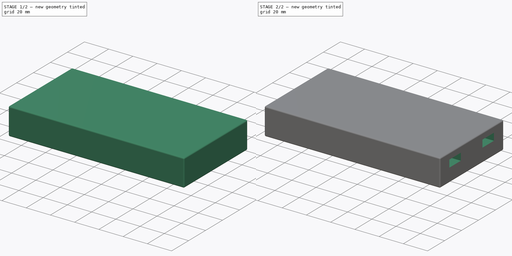
[diagram: build sequence overview — one tinted view per stage of 2, left to right]
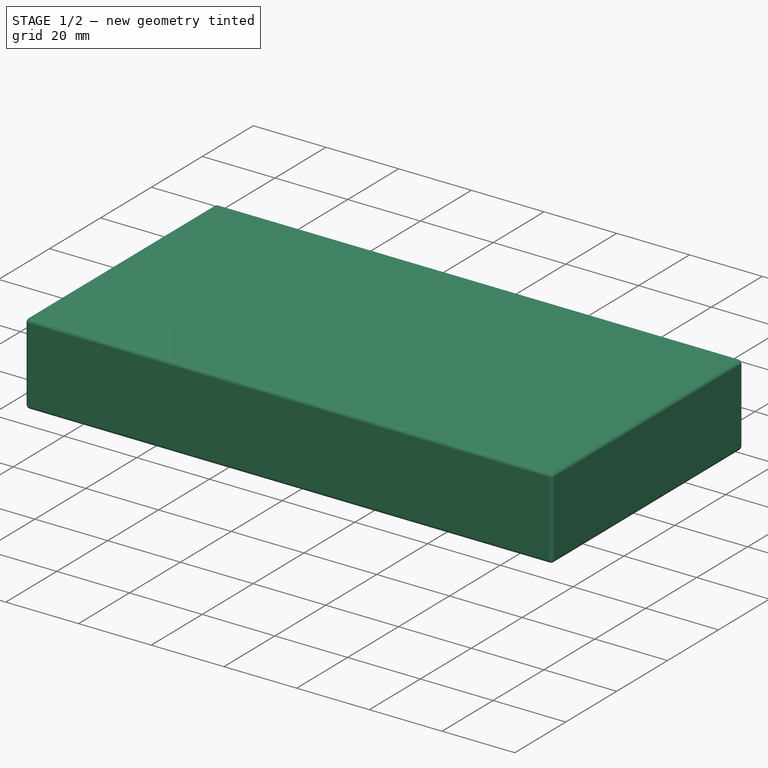
[diagram: stage 1 of 2 — iso view after this stage's code; geometry added in this stage tinted green]
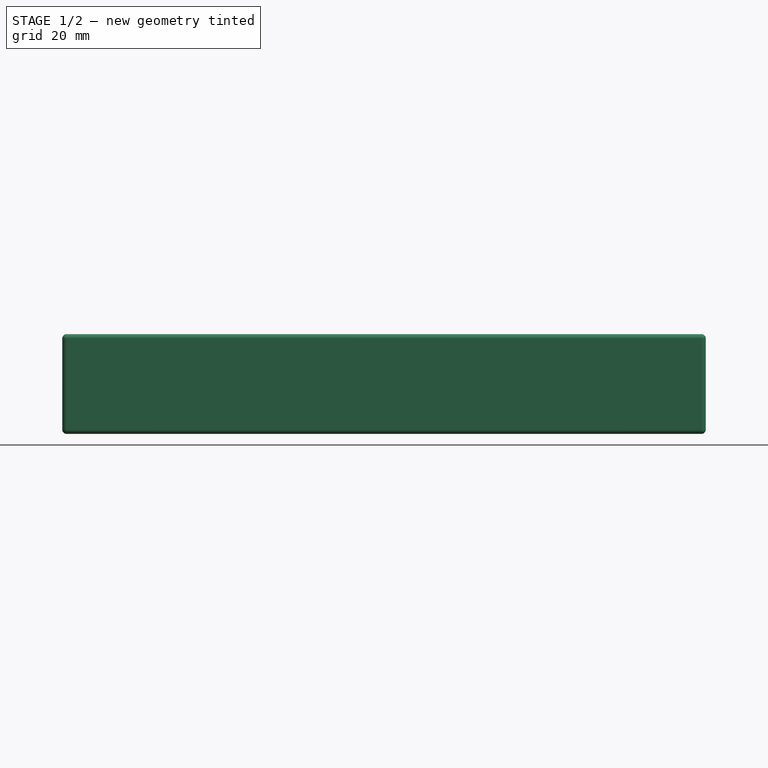
[diagram: stage 1 of 2 — front view after this stage's code; geometry added in this stage tinted green]
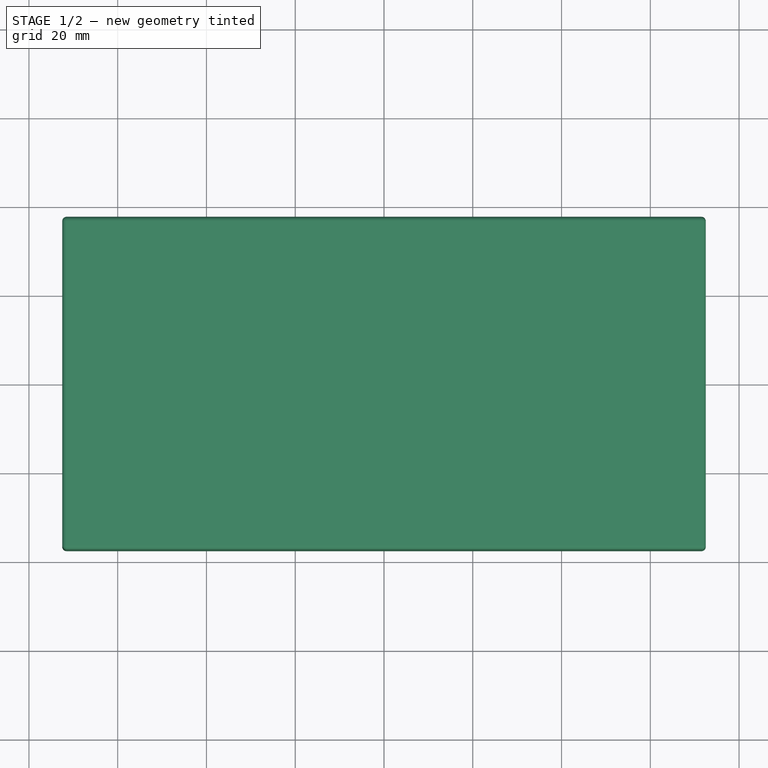
[diagram: stage 1 of 2 — top view after this stage's code; geometry added in this stage tinted green]
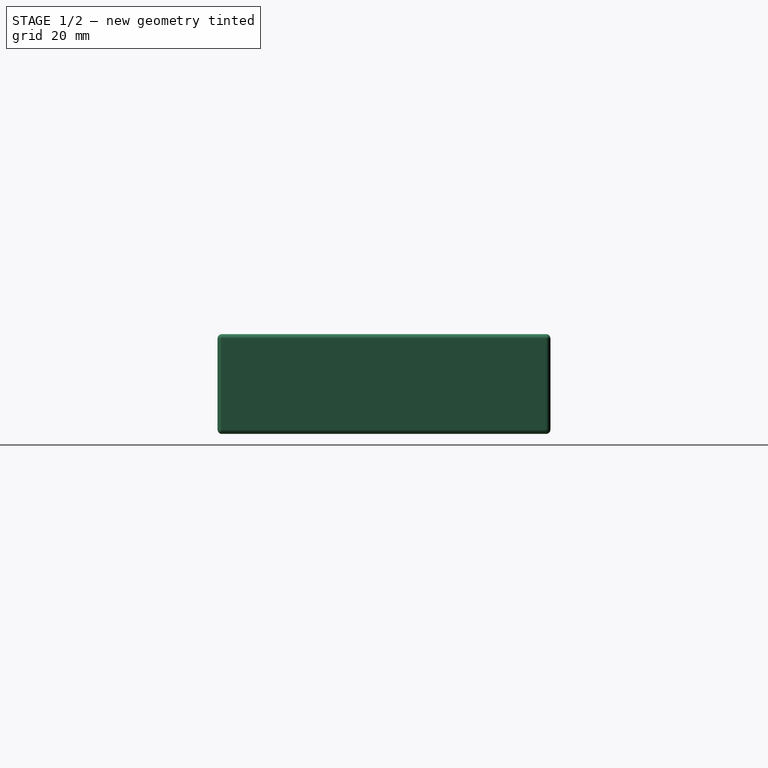
[diagram: stage 1 of 2 — right view after this stage's code; geometry added in this stage tinted green]
FCSTD DOCUMENT  (FreeCAD 0.19R24276 (Git))
Label: PocketJuice Power
License: All rights reserved
LicenseURL: http://en.wikipedia.org/wiki/All_rights_reserved
objects: Sketcher::SketchObject×3, PartDesign::Pocket×2, PartDesign::Pad×1, PartDesign::Fillet×1, PartDesign::Body×1
note: 12 computed .brp shape members not serialized (recipe doc carries the construction recipe); baked Part::Feature solids carry a one-line shape summary decoded from their .brp

FEATURE [Sketcher::SketchObject] Sketch
  FullyConstrained = true
  MapMode = 5
  Support = -> [XY_Plane]
  sketch-geometry (4):
    g0: LineSegment StartX=-72.5 StartY=37.5 StartZ=0 EndX=72.5 EndY=37.5 EndZ=0
    g1: LineSegment StartX=72.5 StartY=37.5 StartZ=0 EndX=72.5 EndY=-37.5 EndZ=0
    g2: LineSegment StartX=72.5 StartY=-37.5 StartZ=0 EndX=-72.5 EndY=-37.5 EndZ=0
    g3: LineSegment StartX=-72.5 StartY=-37.5 StartZ=0 EndX=-72.5 EndY=37.5 EndZ=0
  constraints (12):
    c: Coincident(g0,g1)
    c: Coincident(g1,g2)
    c: Coincident(g2,g3)
    c: Coincident(g3,g0)
    c: Horizontal(g0)
    c: Horizontal(g2)
    c: Vertical(g1)
    c: Vertical(g3)
    c: DistanceY(g1,g1) = 75
    c: DistanceX(g0,g0) = 145
    c: DistanceX(g0,g-1) = 72.5
    c: DistanceY(g-1,g0) = 37.5
FEATURE [PartDesign::Pad] Pad
  Direction = (1,1,1)
  Length = 22.5
  Length2 = 100
  Profile = -> Sketch
  Type = 0
FEATURE [PartDesign::Fillet] Fillet
  Base = -> Pad [Edge10,Edge7,Edge4,Edge12,Edge8,Edge5,Edge2,Edge6,Edge9,Edge3,Edge11,Edge1]
  BaseFeature = -> Pad
  Radius = 1
  SupportTransform = false
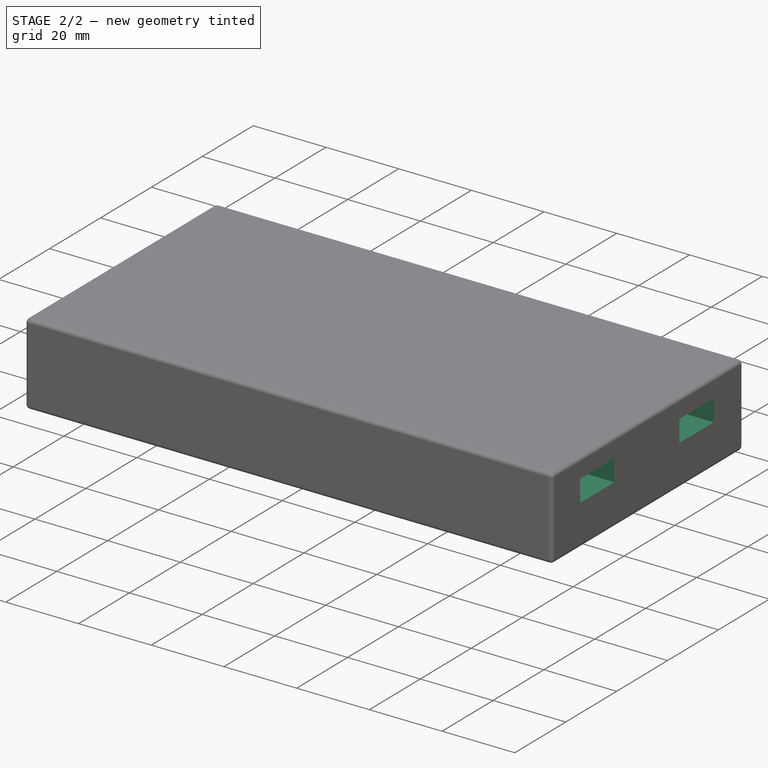
[diagram: stage 2 of 2 — iso view after this stage's code; geometry added in this stage tinted green]
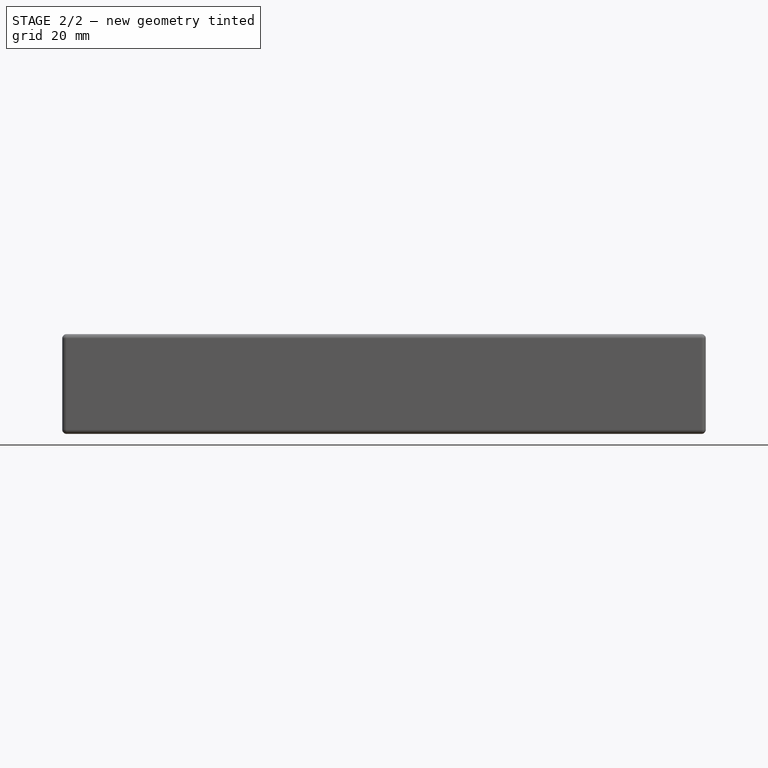
[diagram: stage 2 of 2 — front view after this stage's code; geometry added in this stage tinted green]
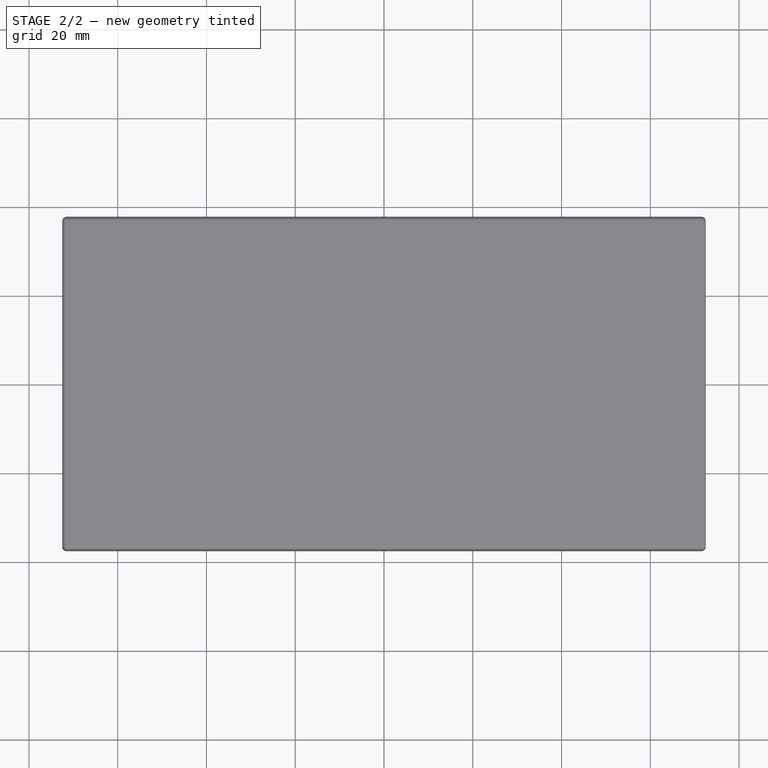
[diagram: stage 2 of 2 — top view after this stage's code; geometry added in this stage tinted green]
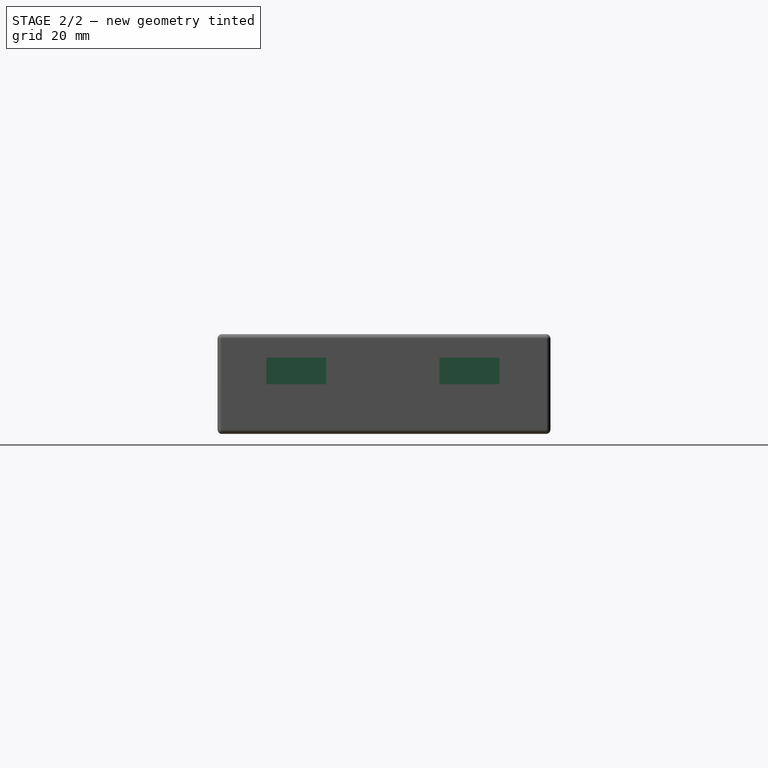
[diagram: stage 2 of 2 — right view after this stage's code; geometry added in this stage tinted green]
FEATURE [Sketcher::SketchObject] Sketch001
  FullyConstrained = false
  MapMode = 5
  Placement = pos=(0,0,0) rot=(1,0,0;3.14159rad)
  Support = -> [Fillet]
  sketch-geometry (20):
    g0: LineSegment StartX=60.5846 StartY=10 StartZ=0 EndX=65.5846 EndY=10 EndZ=0
    g1: LineSegment StartX=65.5846 StartY=10 StartZ=0 EndX=65.5846 EndY=8 EndZ=0
    g2: LineSegment StartX=65.5846 StartY=8 StartZ=0 EndX=60.5846 EndY=8 EndZ=0
    g3: LineSegment StartX=60.5846 StartY=8 StartZ=0 EndX=60.5846 EndY=10 EndZ=0
    g4: LineSegment StartX=60.5846 StartY=4 StartZ=0 EndX=65.5846 EndY=4 EndZ=0
    g5: LineSegment StartX=65.5846 StartY=4 StartZ=0 EndX=65.5846 EndY=2 EndZ=0
    g6: LineSegment StartX=65.5846 StartY=2 StartZ=0 EndX=60.5846 EndY=2 EndZ=0
    g7: LineSegment StartX=60.5846 StartY=2 StartZ=0 EndX=60.5846 EndY=4 EndZ=0
    g8: LineSegment StartX=60.5846 StartY=-2 StartZ=0 EndX=65.5846 EndY=-2 EndZ=0
    g9: LineSegment StartX=65.5846 StartY=-2 StartZ=0 EndX=65.5846 EndY=-4 EndZ=0
    g10: LineSegment StartX=65.5846 StartY=-4 StartZ=0 EndX=60.5846 EndY=-4 EndZ=0
    g11: LineSegment StartX=60.5846 StartY=-4 StartZ=0 EndX=60.5846 EndY=-2 EndZ=0
    g12: LineSegment StartX=60.5846 StartY=-8 StartZ=0 EndX=65.5846 EndY=-8 EndZ=0
    g13: LineSegment StartX=65.5846 StartY=-8 StartZ=0 EndX=65.5846 EndY=-10 EndZ=0
    g14: LineSegment StartX=65.5846 StartY=-10 StartZ=0 EndX=60.5846 EndY=-10 EndZ=0
    g15: LineSegment StartX=60.5846 StartY=-10 StartZ=0 EndX=60.5846 EndY=-8 EndZ=0
    g16: LineSegment StartX=46.5846 StartY=4 StartZ=0 EndX=52.5846 EndY=4 EndZ=0
    g17: LineSegment StartX=52.5846 StartY=4 StartZ=0 EndX=52.5846 EndY=-4 EndZ=0
    g18: LineSegment StartX=52.5846 StartY=-4 StartZ=0 EndX=46.5846 EndY=-4 EndZ=0
    g19: LineSegment StartX=46.5846 StartY=-4 StartZ=0 EndX=46.5846 EndY=4 EndZ=0
  constraints (59):
    c: Coincident(g0,g1)
    c: Coincident(g1,g2)
    c: Coincident(g2,g3)
    c: Coincident(g3,g0)
    c: Horizontal(g0)
    c: Horizontal(g2)
    c: Vertical(g1)
    c: Vertical(g3)
    c: Coincident(g4,g5)
    c: Coincident(g5,g6)
    c: Coincident(g6,g7)
    c: Coincident(g7,g4)
    c: Horizontal(g4)
    c: Horizontal(g6)
    c: Vertical(g5)
    c: Vertical(g7)
    c: Coincident(g8,g9)
    c: Coincident(g9,g10)
    c: Coincident(g10,g11)
    c: Coincident(g11,g8)
    c: Horizontal(g8)
    c: Horizontal(g10)
    c: Vertical(g9)
    c: Vertical(g11)
    c: Coincident(g12,g13)
    c: Coincident(g13,g14)
    c: Coincident(g14,g15)
    c: Coincident(g15,g12)
    c: Horizontal(g12)
    c: Horizontal(g14)
    c: Vertical(g13)
    c: Vertical(g15)
    c: Coincident(g16,g17)
    c: Coincident(g17,g18)
    c: Coincident(g18,g19)
    c: Coincident(g19,g16)
    c: Horizontal(g16)
    c: Horizontal(g18)
    c: Vertical(g17)
    c: Vertical(g19)
    c: DistanceY(g4,g1) = 4
    c: DistanceY(g8,g5) = 4
    c: DistanceY(g12,g9) = 4
    c: DistanceY(g1,g1) = 2
    c: DistanceY(g5,g5) = 2
    c: DistanceY(g9,g9) = 2
    c: DistanceY(g13,g13) = 2
    c: DistanceX(g0,g0) = 5
    c: DistanceX(g4,g4) = 5
    c: DistanceX(g8,g8) = 5
    c: DistanceX(g12,g12) = 5
    c: DistanceX(g1,g4) = 0
    c: DistanceX(g8,g5) = 0
    c: DistanceX(g9,g12) = 0
    c: DistanceY(g-1,g6) = 2
    c: DistanceY(g19,g19) = 8
    c: DistanceX(g16,g16) = 6
    c: DistanceY(g-1,g16) = 4
    c: DistanceX(g16,g2) = 8
FEATURE [PartDesign::Pocket] Pocket
  BaseFeature = -> Fillet
  Length = 2
  Length2 = 100
  Profile = -> Sketch001
  Type = 0
FEATURE [Sketcher::SketchObject] Sketch002
  ExternalGeometry = -> [Pocket]
  FullyConstrained = true
  MapMode = 5
  Placement = pos=(72.5,0,0) rot=(0.57735,0.57735,0.57735;2.0944rad)
  Support = -> [Pocket]
  sketch-geometry (8):
    g0: LineSegment StartX=12.5 StartY=17.2 StartZ=0 EndX=26 EndY=17.2 EndZ=0
    g1: LineSegment StartX=26 StartY=17.2 StartZ=0 EndX=26 EndY=11.2 EndZ=0
    g2: LineSegment StartX=26 StartY=11.2 StartZ=0 EndX=12.5 EndY=11.2 EndZ=0
    g3: LineSegment StartX=12.5 StartY=11.2 StartZ=0 EndX=12.5 EndY=17.2 EndZ=0
    g4: LineSegment StartX=-26.5 StartY=17.2 StartZ=0 EndX=-13 EndY=17.2 EndZ=0
    g5: LineSegment StartX=-13 StartY=17.2 StartZ=0 EndX=-13 EndY=11.2 EndZ=0
    g6: LineSegment StartX=-13 StartY=11.2 StartZ=0 EndX=-26.5 EndY=11.2 EndZ=0
    g7: LineSegment StartX=-26.5 StartY=11.2 StartZ=0 EndX=-26.5 EndY=17.2 EndZ=0
  constraints (24):
    c: Coincident(g0,g1)
    c: Coincident(g1,g2)
    c: Coincident(g2,g3)
    c: Coincident(g3,g0)
    c: Horizontal(g0)
    c: Horizontal(g2)
    c: Vertical(g1)
    c: Vertical(g3)
    c: Coincident(g4,g5)
    c: Coincident(g5,g6)
    c: Coincident(g6,g7)
    c: Coincident(g7,g4)
    c: Horizontal(g4)
    c: Horizontal(g6)
    c: Vertical(g5)
    c: Vertical(g7)
    c: DistanceX(g4,g4) = 13.5
    c: DistanceX(g0,g0) = 13.5
    c: DistanceY(g1,g1) = 6
    c: DistanceY(g5,g5) = 6
    c: DistanceY(g0,g-5) = 5.3
    c: DistanceY(g4,g0) = 0
    c: DistanceX(g5,g2) = 25.5
    c: DistanceX(g1,g-3) = 11.5
FEATURE [PartDesign::Pocket] Pocket001
  BaseFeature = -> Pocket
  Length = 20
  Length2 = 100
  Profile = -> Sketch002
  Type = 0
FEATURE [PartDesign::Body] Body
  Group = -> [Sketch,Pad,Fillet,Sketch001,Pocket,Sketch002,Pocket001]
  Origin = -> Origin
  Tip = -> Pocket001
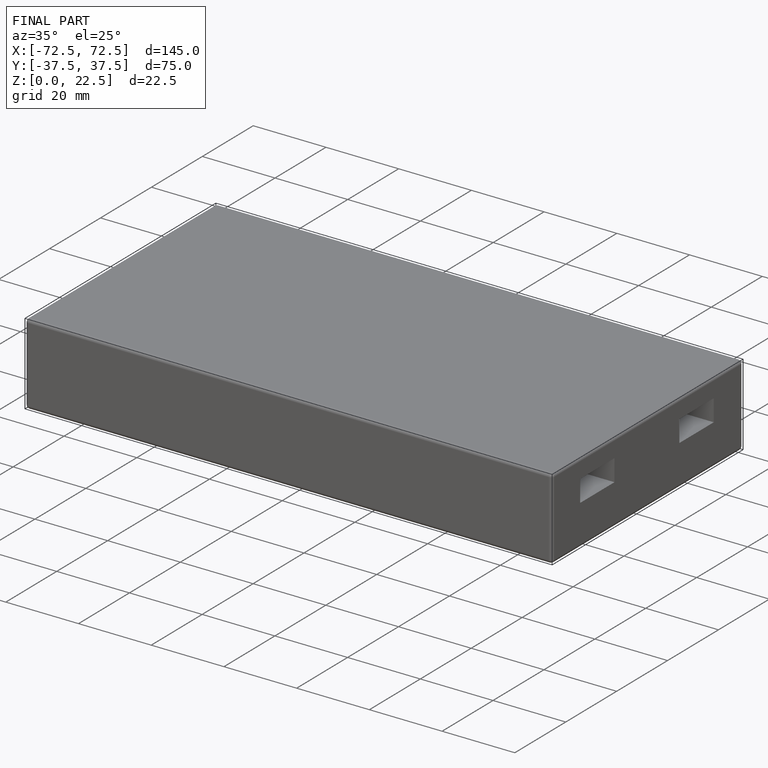
[diagram: finished part — iso view with bounding-box wireframe]
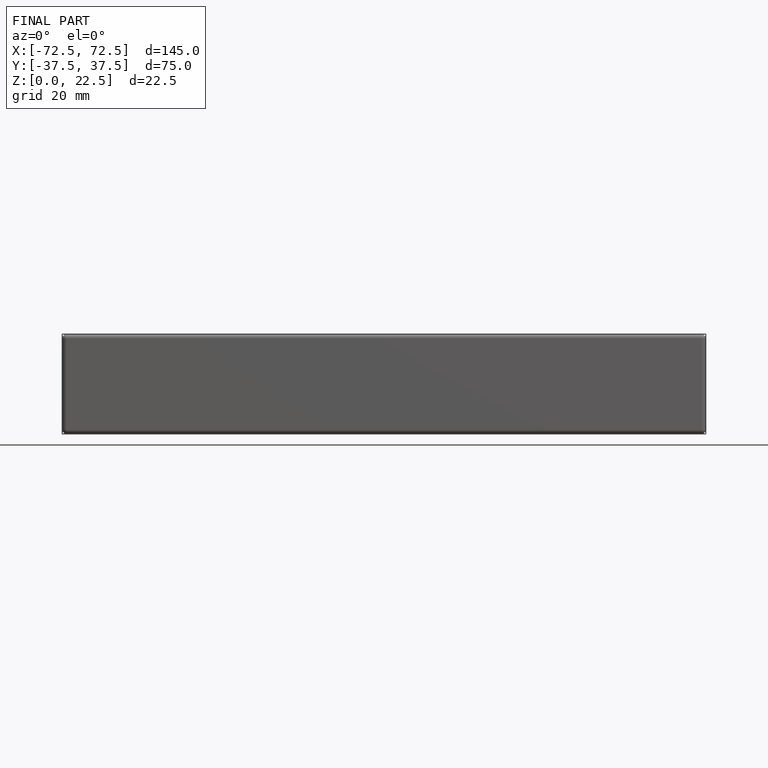
[diagram: finished part — front view with bounding-box wireframe]
